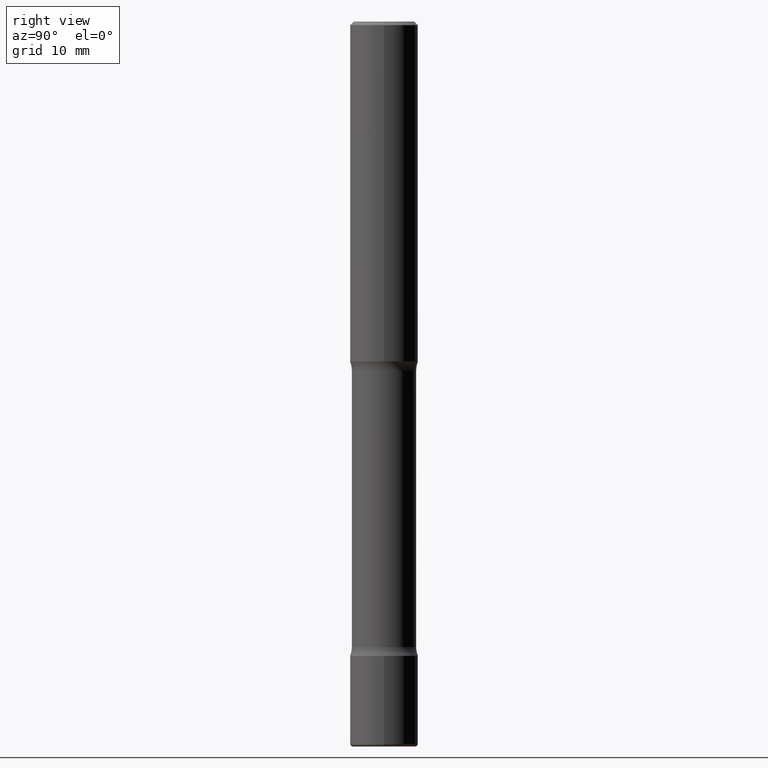
[diagram: clean part render]
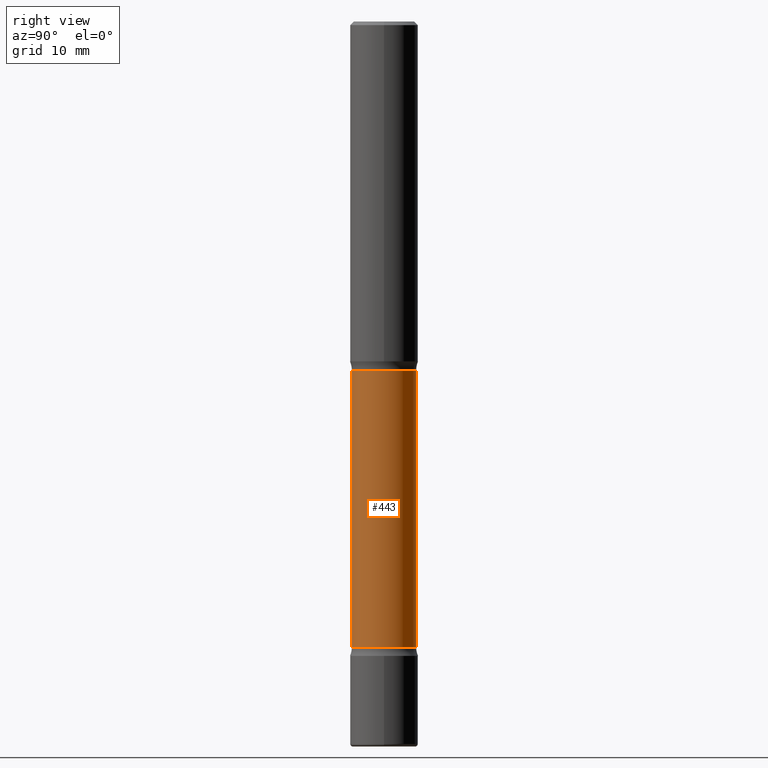
[diagram: same view with one face highlighted and labeled with its STEP entity id]
A machine part, right view. The second image highlights one B-rep face of the part: STEP entity #443.
In plain terms, the highlighted cylindrical surface (edge-blend (fillet) strip) has radius 4.5085 mm, axis along (0, -0, -1).
Its self-contained STEP definition (entity closure, byte-faithful):
#14 = VERTEX_POINT ( 'NONE', #128 ) ;
#18 = ORIENTED_EDGE ( 'NONE', *, *, #395, .F. ) ;
#25 = LINE ( 'NONE', #58, #299 ) ;
#31 = VECTOR ( 'NONE', #87, 39.37007874015748143 ) ;
#45 = LINE ( 'NONE', #218, #31 ) ;
#58 = CARTESIAN_POINT ( 'NONE',  ( 1.239475875289412093E-15, 0.1774999999999863354, -4.000000000000000888 ) ) ;
#75 = VERTEX_POINT ( 'NONE', #533 ) ;
#87 = DIRECTION ( 'NONE',  ( 2.612387241267746127E-29, -3.252444639397522083E-15, -1.000000000000000000 ) ) ;
#102 = DIRECTION ( 'NONE',  ( 6.982962677686265922E-15, 1.000000000000000000, -3.078138584410437918E-15 ) ) ;
#104 = AXIS2_PLACEMENT_3D ( 'NONE', #411, #365, #529 ) ;
#106 = DIRECTION ( 'NONE',  ( 2.612387241267746127E-29, -3.252444639397522083E-15, -1.000000000000000000 ) ) ;
#128 = CARTESIAN_POINT ( 'NONE',  ( 1.239475875289358844E-15, 0.1774999999999932188, -1.923989794855664126 ) ) ;
#153 = ORIENTED_EDGE ( 'NONE', *, *, #239, .T. ) ;
#179 = CARTESIAN_POINT ( 'NONE',  ( 1.239475875289396118E-15, 0.1774999999999878897, -3.451010205144337206 ) ) ;
#185 = ORIENTED_EDGE ( 'NONE', *, *, #268, .T. ) ;
#189 = CIRCLE ( 'NONE', #498, 0.1774999999999999634 ) ;
#195 = DIRECTION ( 'NONE',  ( 2.612387241267746127E-29, -3.252444639397522477E-15, -1.000000000000000000 ) ) ;
#218 = CARTESIAN_POINT ( 'NONE',  ( -1.217738394604349018E-15, -0.1775000000000139799, -4.000000000000000000 ) ) ;
#239 = EDGE_CURVE ( 'NONE', #248, #75, #45, .T. ) ;
#245 = DIRECTION ( 'NONE',  ( 6.982962677686266711E-15, 1.000000000000000000, -3.078138584410434763E-15 ) ) ;
#248 = VERTEX_POINT ( 'NONE', #257 ) ;
#257 = CARTESIAN_POINT ( 'NONE',  ( -1.252040884593263284E-15, -0.1775000000000074296, -1.923989794855663016 ) ) ;
#268 = EDGE_CURVE ( 'NONE', #14, #248, #358, .T. ) ;
#299 = VECTOR ( 'NONE', #106, 39.37007874015748143 ) ;
#304 = CARTESIAN_POINT ( 'NONE',  ( 9.865334442281852273E-29, -1.384640700564977196E-14, -4.000000000000000888 ) ) ;
#331 = DIRECTION ( 'NONE',  ( 2.612387241267746127E-29, -3.252444639397522477E-15, -1.000000000000000000 ) ) ;
#358 = CIRCLE ( 'NONE', #104, 0.1775000000000003242 ) ;
#363 = EDGE_CURVE ( 'NONE', #14, #429, #25, .T. ) ;
#365 = DIRECTION ( 'NONE',  ( 2.612387241267746127E-29, -3.252444639397522477E-15, -1.000000000000000000 ) ) ;
#382 = EDGE_LOOP ( 'NONE', ( #185, #153, #18, #560 ) ) ;
#395 = EDGE_CURVE ( 'NONE', #429, #75, #189, .T. ) ;
#411 = CARTESIAN_POINT ( 'NONE',  ( 4.441991869621149927E-29, -7.094298742593522572E-15, -1.923989794855663460 ) ) ;
#422 = CARTESIAN_POINT ( 'NONE',  ( 8.431160506614718513E-29, -1.206084809028752233E-14, -3.451010205144336762 ) ) ;
#429 = VERTEX_POINT ( 'NONE', #179 ) ;
#443 = ADVANCED_FACE ( 'NONE', ( #516 ), #475, .T. ) ;
#475 = CYLINDRICAL_SURFACE ( 'NONE', #539, 0.1775000000000001577 ) ;
#498 = AXIS2_PLACEMENT_3D ( 'NONE', #422, #331, #102 ) ;
#516 = FACE_OUTER_BOUND ( 'NONE', #382, .T. ) ;
#529 = DIRECTION ( 'NONE',  ( 6.982962677686265133E-15, 1.000000000000000000, -3.078138584410432002E-15 ) ) ;
#533 = CARTESIAN_POINT ( 'NONE',  ( -1.252040884593219502E-15, -0.1775000000000120093, -3.451010205144335874 ) ) ;
#539 = AXIS2_PLACEMENT_3D ( 'NONE', #304, #195, #245 ) ;
#560 = ORIENTED_EDGE ( 'NONE', *, *, #363, .F. ) ;